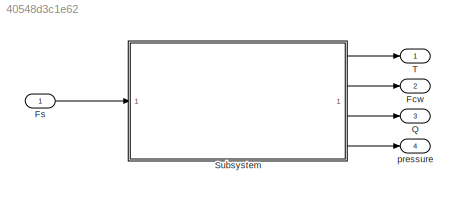
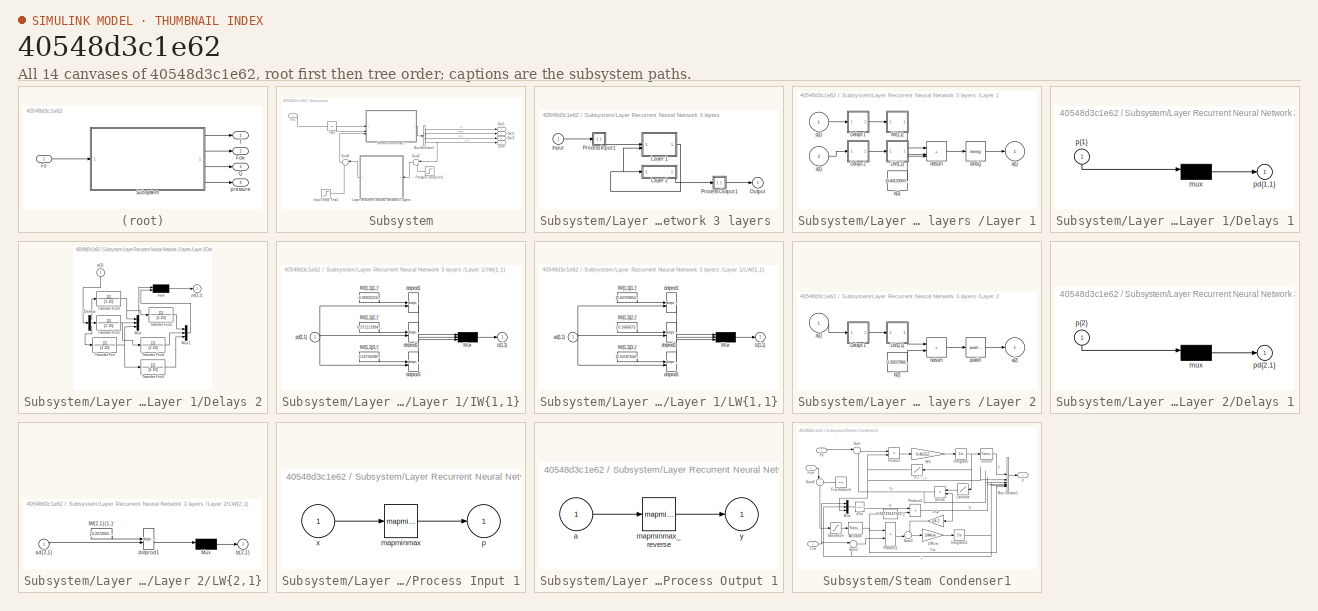
[diagram: thumbnail index - all 14 canvases of the model, root first then tree order]
MODEL slx_40548d3c1e62
KIND model
CONFIG AbsTol = auto
CONFIG EnableMultiTasking = off
CONFIG FixedStep = 0.02
CONFIG MaxStep = .1
CONFIG MinStep = auto
CONFIG RelTol = 1e-3
CONFIG SampleTimeConstraint = Unconstrained
CONFIG SolverName = VariableStepAuto
CONFIG StartTime = 0.0
CONFIG StopTime = 40
WORKSPACE source: mxarray member
WORKSPACE T = [0 0.05 0.1 0.15 0.2 0.25 0.3 0.35 0.4 0.45 0.5 0.55 ... (701 elements, 701x1)]
WORKSPACE U = [3.99594136536 3.99594136536 3.99594136536 3.99594136536 3.99594136536 3.99594136536 3.99594136536 3.99594136536 3.99594136536 3.99594136536 3.99594136536 3.99594136536 ... (701 elements, 701x1)]
BLOCK [Outport] Fcw
  Port = 2
  VectorParamsAs1DForOutWhenUnconnected = off
BLOCK [Inport] Fs
BLOCK [Outport] Q
  Port = 3
  VectorParamsAs1DForOutWhenUnconnected = off
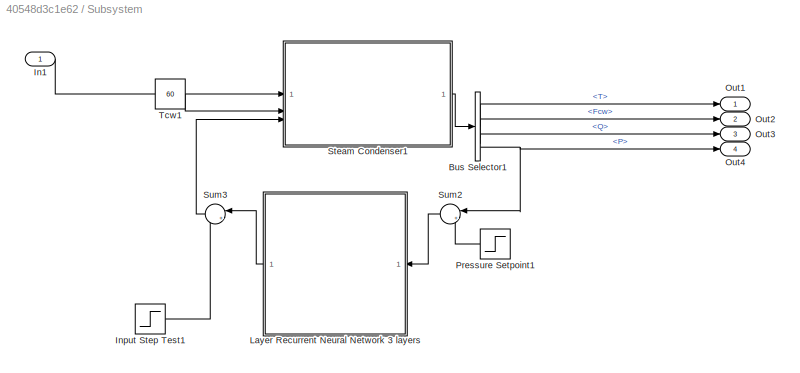
BLOCK [SubSystem] Subsystem
BLOCK [BusSelector] Subsystem/Bus Selector1
  OutputSignals = T,Fcw,Q,P
BLOCK [Inport] Subsystem/In1
BLOCK [Step] Subsystem/Input Step Test1
  After = 0
  SampleTime = 0
  Time = 10
BLOCK [SubSystem] Subsystem/Layer Recurrent Neural Network 3 layers 
BLOCK [Inport] Subsystem/Layer Recurrent Neural Network 3 layers /Input
  PortDimensions = 1
BLOCK [SubSystem] Subsystem/Layer Recurrent Neural Network 3 layers /Layer 1
BLOCK [SubSystem] Subsystem/Layer Recurrent Neural Network 3 layers /Layer 1/Delays 1
BLOCK [Mux] Subsystem/Layer Recurrent Neural Network 3 layers /Layer 1/Delays 1/mux
  Inputs = 1
BLOCK [Outport] Subsystem/Layer Recurrent Neural Network 3 layers /Layer 1/Delays 1/pd{1,1}
  VectorParamsAs1DForOutWhenUnconnected = off
BLOCK [Inport] Subsystem/Layer Recurrent Neural Network 3 layers /Layer 1/Delays 1/p{1}
  NameLocation = left
  PortDimensions = 1
BLOCK [SubSystem] Subsystem/Layer Recurrent Neural Network 3 layers /Layer 1/Delays 2
BLOCK [Demux] Subsystem/Layer Recurrent Neural Network 3 layers /Layer 1/Delays 2/Demux
  Outputs = 3
BLOCK [Mux] Subsystem/Layer Recurrent Neural Network 3 layers /Layer 1/Delays 2/Mux
  DisplayOption = bar
  Inputs = 3
BLOCK [Mux] Subsystem/Layer Recurrent Neural Network 3 layers /Layer 1/Delays 2/Mux1
  DisplayOption = bar
  Inputs = 3
BLOCK [TransferFcn] Subsystem/Layer Recurrent Neural Network 3 layers /Layer 1/Delays 2/Transfer Fcn
  Denominator = [1 10]
BLOCK [TransferFcn] Subsystem/Layer Recurrent Neural Network 3 layers /Layer 1/Delays 2/Transfer Fcn1
  Denominator = [1 10]
BLOCK [TransferFcn] Subsystem/Layer Recurrent Neural Network 3 layers /Layer 1/Delays 2/Transfer Fcn2
  Denominator = [1 10]
BLOCK [TransferFcn] Subsystem/Layer Recurrent Neural Network 3 layers /Layer 1/Delays 2/Transfer Fcn3
  Denominator = [1 10]
BLOCK [TransferFcn] Subsystem/Layer Recurrent Neural Network 3 layers /Layer 1/Delays 2/Transfer Fcn4
  Denominator = [1 10]
BLOCK [TransferFcn] Subsystem/Layer Recurrent Neural Network 3 layers /Layer 1/Delays 2/Transfer Fcn5
  Denominator = [1 10]
BLOCK [Mux] Subsystem/Layer Recurrent Neural Network 3 layers /Layer 1/Delays 2/mux
  Inputs = 2
BLOCK [Outport] Subsystem/Layer Recurrent Neural Network 3 layers /Layer 1/Delays 2/pd{1,1}
  VectorParamsAs1DForOutWhenUnconnected = off
BLOCK [Inport] Subsystem/Layer Recurrent Neural Network 3 layers /Layer 1/Delays 2/p{1}
  NameLocation = left
  PortDimensions = 3
BLOCK [SubSystem] Subsystem/Layer Recurrent Neural Network 3 layers /Layer 1/IW{1,1}
BLOCK [Constant] Subsystem/Layer Recurrent Neural Network 3 layers /Layer 1/IW{1,1}/IW{1,1}(1,:)'
  Value = -0.36932254958803395
BLOCK [Constant] Subsystem/Layer Recurrent Neural Network 3 layers /Layer 1/IW{1,1}/IW{1,1}(2,:)'
  Value = 0.37111199431650393
BLOCK [Constant] Subsystem/Layer Recurrent Neural Network 3 layers /Layer 1/IW{1,1}/IW{1,1}(3,:)'
  Value = -0.52736280584118833
BLOCK [Mux] Subsystem/Layer Recurrent Neural Network 3 layers /Layer 1/IW{1,1}/Mux
  Inputs = 3
BLOCK [Reference] Subsystem/Layer Recurrent Neural Network 3 layers /Layer 1/IW{1,1}/dotprod1  REF=neural/Weight Functions/dotprod
  SourceBlock = neural/Weight Functions/dotprod
  SourceType = DOTPROD
BLOCK [Reference] Subsystem/Layer Recurrent Neural Network 3 layers /Layer 1/IW{1,1}/dotprod2  REF=neural/Weight Functions/dotprod
  SourceBlock = neural/Weight Functions/dotprod
  SourceType = DOTPROD
BLOCK [Reference] Subsystem/Layer Recurrent Neural Network 3 layers /Layer 1/IW{1,1}/dotprod3  REF=neural/Weight Functions/dotprod
  SourceBlock = neural/Weight Functions/dotprod
  SourceType = DOTPROD
BLOCK [Outport] Subsystem/Layer Recurrent Neural Network 3 layers /Layer 1/IW{1,1}/iz{1,1}
  VectorParamsAs1DForOutWhenUnconnected = off
BLOCK [Inport] Subsystem/Layer Recurrent Neural Network 3 layers /Layer 1/IW{1,1}/pd{1,1}
  PortDimensions = 1
BLOCK [SubSystem] Subsystem/Layer Recurrent Neural Network 3 layers /Layer 1/LW{1,1}
BLOCK [Constant] Subsystem/Layer Recurrent Neural Network 3 layers /Layer 1/LW{1,1}/IW{1,1}(1,:)'
  Value = [0.44769854454577174;1.1961840315574388;1.1412233787458486;0.72001623019786209;-0.37547125154051064;-0.61546760904874331]
BLOCK [Constant] Subsystem/Layer Recurrent Neural Network 3 layers /Layer 1/LW{1,1}/IW{1,1}(2,:)'
  Value = [-0.16668730359454359;-0.016432941671533533;-0.22132796342367161;-0.037206224095552992;0.059874671921603305;0.080202592729115826]
BLOCK [Constant] Subsystem/Layer Recurrent Neural Network 3 layers /Layer 1/LW{1,1}/IW{1,1}(3,:)'
  Value = [0.24187644262601646;-0.66963285238228187;-1.0984401489322673;0.029109804692608397;1.3722216833345802;0.66166906669524039]
BLOCK [Mux] Subsystem/Layer Recurrent Neural Network 3 layers /Layer 1/LW{1,1}/Mux
  Inputs = 3
BLOCK [Inport] Subsystem/Layer Recurrent Neural Network 3 layers /Layer 1/LW{1,1}/ad{1,1}
  PortDimensions = 6
BLOCK [Reference] Subsystem/Layer Recurrent Neural Network 3 layers /Layer 1/LW{1,1}/dotprod1  REF=neural/Weight Functions/dotprod
  SourceBlock = neural/Weight Functions/dotprod
  SourceType = DOTPROD
BLOCK [Reference] Subsystem/Layer Recurrent Neural Network 3 layers /Layer 1/LW{1,1}/dotprod2  REF=neural/Weight Functions/dotprod
  SourceBlock = neural/Weight Functions/dotprod
  SourceType = DOTPROD
BLOCK [Reference] Subsystem/Layer Recurrent Neural Network 3 layers /Layer 1/LW{1,1}/dotprod3  REF=neural/Weight Functions/dotprod
  SourceBlock = neural/Weight Functions/dotprod
  SourceType = DOTPROD
BLOCK [Outport] Subsystem/Layer Recurrent Neural Network 3 layers /Layer 1/LW{1,1}/lz{1,1}
  VectorParamsAs1DForOutWhenUnconnected = off
BLOCK [Outport] Subsystem/Layer Recurrent Neural Network 3 layers /Layer 1/a{1}
  InitialOutput = [0;0;0]
  VectorParamsAs1DForOutWhenUnconnected = off
BLOCK [Inport] Subsystem/Layer Recurrent Neural Network 3 layers /Layer 1/a{1} 
  Port = 2
  PortDimensions = 3
BLOCK [Constant] Subsystem/Layer Recurrent Neural Network 3 layers /Layer 1/b{1}
  Value = [0.40129050296348601;-0.12475735064274925;-1.3584541012442735]
BLOCK [Sum] Subsystem/Layer Recurrent Neural Network 3 layers /Layer 1/netsum
  IconShape = rectangular
  InputSameDT = on
  Inputs = 3
  OutDataTypeStr = Inherit: Same as first input
  SaturateOnIntegerOverflow = on
BLOCK [Inport] Subsystem/Layer Recurrent Neural Network 3 layers /Layer 1/p{1}
  PortDimensions = 1
BLOCK [Reference] Subsystem/Layer Recurrent Neural Network 3 layers /Layer 1/tansig  REF=neural/Transfer Functions/tansig
  SourceBlock = neural/Transfer Functions/tansig
  SourceType = TANSIG
BLOCK [SubSystem] Subsystem/Layer Recurrent Neural Network 3 layers /Layer 2
BLOCK [SubSystem] Subsystem/Layer Recurrent Neural Network 3 layers /Layer 2/Delays 1
BLOCK [Mux] Subsystem/Layer Recurrent Neural Network 3 layers /Layer 2/Delays 1/mux
  Inputs = 1
BLOCK [Outport] Subsystem/Layer Recurrent Neural Network 3 layers /Layer 2/Delays 1/pd{2,1}
  VectorParamsAs1DForOutWhenUnconnected = off
BLOCK [Inport] Subsystem/Layer Recurrent Neural Network 3 layers /Layer 2/Delays 1/p{2}
  NameLocation = left
  PortDimensions = 3
BLOCK [SubSystem] Subsystem/Layer Recurrent Neural Network 3 layers /Layer 2/LW{2,1}
BLOCK [Constant] Subsystem/Layer Recurrent Neural Network 3 layers /Layer 2/LW{2,1}/IW{2,1}(1,:)'
  Value = [-0.22749313555095124;2.0804967759906643;-0.56644809886208158]
BLOCK [Mux] Subsystem/Layer Recurrent Neural Network 3 layers /Layer 2/LW{2,1}/Mux
  Inputs = 1
BLOCK [Inport] Subsystem/Layer Recurrent Neural Network 3 layers /Layer 2/LW{2,1}/ad{2,1}
  PortDimensions = 3
BLOCK [Reference] Subsystem/Layer Recurrent Neural Network 3 layers /Layer 2/LW{2,1}/dotprod1  REF=neural/Weight Functions/dotprod
  SourceBlock = neural/Weight Functions/dotprod
  SourceType = DOTPROD
BLOCK [Outport] Subsystem/Layer Recurrent Neural Network 3 layers /Layer 2/LW{2,1}/lz{2,1}
  VectorParamsAs1DForOutWhenUnconnected = off
BLOCK [Inport] Subsystem/Layer Recurrent Neural Network 3 layers /Layer 2/a{1} 
  PortDimensions = 3
BLOCK [Outport] Subsystem/Layer Recurrent Neural Network 3 layers /Layer 2/a{2}
  InitialOutput = 0
  VectorParamsAs1DForOutWhenUnconnected = off
BLOCK [Constant] Subsystem/Layer Recurrent Neural Network 3 layers /Layer 2/b{2}
  Value = -0.33227866684137108
BLOCK [Sum] Subsystem/Layer Recurrent Neural Network 3 layers /Layer 2/netsum
  IconShape = rectangular
  InputSameDT = on
  Inputs = 2
  OutDataTypeStr = Inherit: Same as first input
  SaturateOnIntegerOverflow = on
BLOCK [Reference] Subsystem/Layer Recurrent Neural Network 3 layers /Layer 2/purelin  REF=neural/Transfer Functions/purelin
  SourceBlock = neural/Transfer Functions/purelin
  SourceType = PURELIN
BLOCK [Outport] Subsystem/Layer Recurrent Neural Network 3 layers /Output
  InitialOutput = 0
  VectorParamsAs1DForOutWhenUnconnected = off
BLOCK [SubSystem] Subsystem/Layer Recurrent Neural Network 3 layers /Process Input 1
BLOCK [Reference] Subsystem/Layer Recurrent Neural Network 3 layers /Process Input 1/mapminmax  REF=neural/Processing Functions/mapminmax
  SourceBlock = neural/Processing Functions/mapminmax
  SourceType = MAPMINMAX Preprocess
BLOCK [Outport] Subsystem/Layer Recurrent Neural Network 3 layers /Process Input 1/p
  PortDimensions = 1
  VectorParamsAs1DForOutWhenUnconnected = off
BLOCK [Inport] Subsystem/Layer Recurrent Neural Network 3 layers /Process Input 1/x
  PortDimensions = 1
BLOCK [SubSystem] Subsystem/Layer Recurrent Neural Network 3 layers /Process Output 1
BLOCK [Inport] Subsystem/Layer Recurrent Neural Network 3 layers /Process Output 1/a
  PortDimensions = 1
BLOCK [Reference] Subsystem/Layer Recurrent Neural Network 3 layers /Process Output 1/mapminmax_reverse  REF=neural/Processing Functions/mapminmax_reverse
  SourceBlock = neural/Processing Functions/mapminmax_reverse
  SourceType = MAPMINMAX Reverse Process
BLOCK [Outport] Subsystem/Layer Recurrent Neural Network 3 layers /Process Output 1/y
  PortDimensions = 1
  VectorParamsAs1DForOutWhenUnconnected = off
BLOCK [Outport] Subsystem/Out1
  VectorParamsAs1DForOutWhenUnconnected = off
BLOCK [Outport] Subsystem/Out2
  Port = 2
  VectorParamsAs1DForOutWhenUnconnected = off
BLOCK [Outport] Subsystem/Out3
  Port = 3
  VectorParamsAs1DForOutWhenUnconnected = off
BLOCK [Outport] Subsystem/Out4
  Port = 4
  VectorParamsAs1DForOutWhenUnconnected = off
BLOCK [Step] Subsystem/Pressure Setpoint1
  After = 87
  Before = 90
  SampleTime = 0
  Time = 2
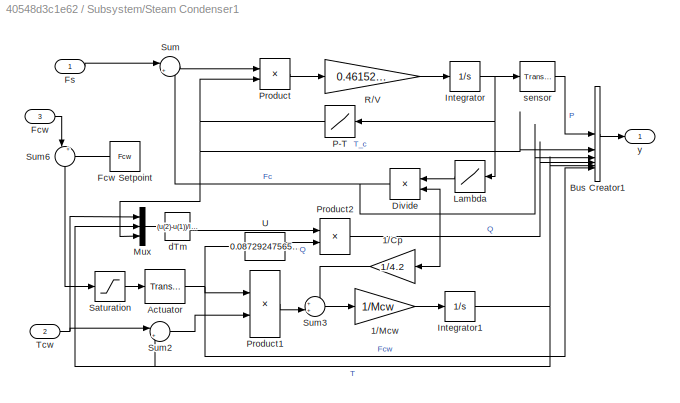
BLOCK [SubSystem] Subsystem/Steam Condenser1
BLOCK [Gain] Subsystem/Steam Condenser1/1//Cp
  Gain = 1/4.2
  OutDataTypeStr = Inherit: Same as input
  ParamDataTypeStr = Inherit: Same as input
BLOCK [Gain] Subsystem/Steam Condenser1/1//Mcw
  Gain = 1/Mcw
  OutDataTypeStr = Inherit: Same as input
  ParamDataTypeStr = Inherit: Same as input
BLOCK [Reference] Subsystem/Steam Condenser1/Actuator  REF=simulink_extras/Additional
Linear/Transfer Fcn
(with initial outputs)
  SourceBlock = simulink_extras/Additional\nLinear/Transfer Fcn\n(with initial outputs)
  SourceType = Transfer Function with Initial Outputs
BLOCK [BusCreator] Subsystem/Steam Condenser1/Bus Creator1
  DisplayOption = bar
  InheritFromInputs = on
  Inputs = 6
BLOCK [Product] Subsystem/Steam Condenser1/Divide
  InputSameDT = on
  Inputs = /*
  OutDataTypeStr = Inherit: Same as first input
  RndMeth = Zero
BLOCK [Inport] Subsystem/Steam Condenser1/Fcw
  Port = 3
BLOCK [Constant] Subsystem/Steam Condenser1/Fcw Setpoint
  Value = Fcw
BLOCK [Inport] Subsystem/Steam Condenser1/Fs
BLOCK [Integrator] Subsystem/Steam Condenser1/Integrator
  InitialCondition = P
BLOCK [Integrator] Subsystem/Steam Condenser1/Integrator1
  InitialCondition = T
BLOCK [Lookup] Subsystem/Steam Condenser1/Lambda
  InputValues = [50 60 70 80 90 100 110]
  Table = [2305.42 2293.64 2283.30 2274.05 2265.65 2257.92 2250.76]
BLOCK [Mux] Subsystem/Steam Condenser1/Mux
  DisplayOption = bar
  Inputs = 3
BLOCK [Lookup] Subsystem/Steam Condenser1/P-T
  InputValues = [50 60 70 80 90 100 110]
  Table = [81.3167 85.9258 89.9315 93.4854 96.6870 99.6059 102.2923]
BLOCK [Product] Subsystem/Steam Condenser1/Product
  InputSameDT = on
  OutDataTypeStr = Inherit: Same as first input
  RndMeth = Zero
BLOCK [Product] Subsystem/Steam Condenser1/Product1
  InputSameDT = on
  OutDataTypeStr = Inherit: Same as first input
  RndMeth = Zero
BLOCK [Product] Subsystem/Steam Condenser1/Product2
  InputSameDT = on
  Inputs = */
  OutDataTypeStr = Inherit: Same as first input
  RndMeth = Zero
BLOCK [Gain] Subsystem/Steam Condenser1/R//V
  Gain = 0.461526/V
  OutDataTypeStr = Inherit: Same as input
  ParamDataTypeStr = Inherit: Same as input
BLOCK [Saturate] Subsystem/Steam Condenser1/Saturation
  LowerLimit = 0
  UpperLimit = 200
BLOCK [Sum] Subsystem/Steam Condenser1/Sum
  InputSameDT = on
  Inputs = |+-
  OutDataTypeStr = Inherit: Same as first input
BLOCK [Sum] Subsystem/Steam Condenser1/Sum2
  InputSameDT = on
  Inputs = |+-
  OutDataTypeStr = Inherit: Same as first input
BLOCK [Sum] Subsystem/Steam Condenser1/Sum3
  InputSameDT = on
  Inputs = ++|
  OutDataTypeStr = Inherit: Same as first input
BLOCK [Sum] Subsystem/Steam Condenser1/Sum6
  InputSameDT = on
  Inputs = |++
  NameLocation = left
  OutDataTypeStr = Inherit: Same as first input
BLOCK [Inport] Subsystem/Steam Condenser1/Tcw
  Port = 2
BLOCK [Fcn] Subsystem/Steam Condenser1/U
  Expr = 0.0872924756541668/u^0.8+0.00073786772008033
BLOCK [Fcn] Subsystem/Steam Condenser1/dTm
  Expr = (u(2)-u(1))/log((u(3)-u(1))/(u(3)-u(2)))
BLOCK [Reference] Subsystem/Steam Condenser1/sensor  REF=simulink_extras/Additional
Linear/Transfer Fcn
(with initial outputs)
  SourceBlock = simulink_extras/Additional\nLinear/Transfer Fcn\n(with initial outputs)
  SourceType = Transfer Function with Initial Outputs
BLOCK [Outport] Subsystem/Steam Condenser1/y
  VectorParamsAs1DForOutWhenUnconnected = off
BLOCK [Sum] Subsystem/Sum2
  InputSameDT = on
  Inputs = |+-
  OutDataTypeStr = Inherit: Same as first input
BLOCK [Sum] Subsystem/Sum3
  InputSameDT = on
  Inputs = |++
  OutDataTypeStr = Inherit: Same as first input
BLOCK [Constant] Subsystem/Tcw1
  Value = 60
  VectorParams1D = off
BLOCK [Outport] T
  VectorParamsAs1DForOutWhenUnconnected = off
BLOCK [Outport] pressure
  Port = 4
  VectorParamsAs1DForOutWhenUnconnected = off
LINE Fs:1 -> Subsystem:1
LINE Subsystem/Bus Selector1:1 -> Subsystem/Out1:1
LINE Subsystem/Bus Selector1:2 -> Subsystem/Out2:1
LINE Subsystem/Bus Selector1:3 -> Subsystem/Out3:1
NET Subsystem/Bus Selector1:4 -> Subsystem/Out4:1, Subsystem/Sum2:1
LINE Subsystem/In1:1 -> Subsystem/Steam Condenser1:1
LINE Subsystem/Input Step Test1:1 -> Subsystem/Sum3:2
LINE Subsystem/Layer Recurrent Neural Network 3 layers /Input:1 -> Subsystem/Layer Recurrent Neural Network 3 layers /Process Input 1:1
LINE Subsystem/Layer Recurrent Neural Network 3 layers /Layer 1/Delays 1/mux:1 -> Subsystem/Layer Recurrent Neural Network 3 layers /Layer 1/Delays 1/pd{1,1}:1
LINE Subsystem/Layer Recurrent Neural Network 3 layers /Layer 1/Delays 1/p{1}:1 -> Subsystem/Layer Recurrent Neural Network 3 layers /Layer 1/Delays 1/mux:1
LINE Subsystem/Layer Recurrent Neural Network 3 layers /Layer 1/Delays 1:1 -> Subsystem/Layer Recurrent Neural Network 3 layers /Layer 1/IW{1,1}:1
LINE Subsystem/Layer Recurrent Neural Network 3 layers /Layer 1/Delays 2/Demux:1 -> Subsystem/Layer Recurrent Neural Network 3 layers /Layer 1/Delays 2/Transfer Fcn2:1
LINE Subsystem/Layer Recurrent Neural Network 3 layers /Layer 1/Delays 2/Demux:2 -> Subsystem/Layer Recurrent Neural Network 3 layers /Layer 1/Delays 2/Transfer Fcn1:1
LINE Subsystem/Layer Recurrent Neural Network 3 layers /Layer 1/Delays 2/Demux:3 -> Subsystem/Layer Recurrent Neural Network 3 layers /Layer 1/Delays 2/Transfer Fcn:1
LINE Subsystem/Layer Recurrent Neural Network 3 layers /Layer 1/Delays 2/Mux1:1 -> Subsystem/Layer Recurrent Neural Network 3 layers /Layer 1/Delays 2/mux:2
LINE Subsystem/Layer Recurrent Neural Network 3 layers /Layer 1/Delays 2/Mux:1 -> Subsystem/Layer Recurrent Neural Network 3 layers /Layer 1/Delays 2/mux:1
NET Subsystem/Layer Recurrent Neural Network 3 layers /Layer 1/Delays 2/Transfer Fcn1:1 -> Subsystem/Layer Recurrent Neural Network 3 layers /Layer 1/Delays 2/Mux:2, Subsystem/Layer Recurrent Neural Network 3 layers /Layer 1/Delays 2/Transfer Fcn4:1
NET Subsystem/Layer Recurrent Neural Network 3 layers /Layer 1/Delays 2/Transfer Fcn2:1 -> Subsystem/Layer Recurrent Neural Network 3 layers /Layer 1/Delays 2/Mux:1, Subsystem/Layer Recurrent Neural Network 3 layers /Layer 1/Delays 2/Transfer Fcn5:1
LINE Subsystem/Layer Recurrent Neural Network 3 layers /Layer 1/Delays 2/Transfer Fcn3:1 -> Subsystem/Layer Recurrent Neural Network 3 layers /Layer 1/Delays 2/Mux1:3
LINE Subsystem/Layer Recurrent Neural Network 3 layers /Layer 1/Delays 2/Transfer Fcn4:1 -> Subsystem/Layer Recurrent Neural Network 3 layers /Layer 1/Delays 2/Mux1:2
LINE Subsystem/Layer Recurrent Neural Network 3 layers /Layer 1/Delays 2/Transfer Fcn5:1 -> Subsystem/Layer Recurrent Neural Network 3 layers /Layer 1/Delays 2/Mux1:1
NET Subsystem/Layer Recurrent Neural Network 3 layers /Layer 1/Delays 2/Transfer Fcn:1 -> Subsystem/Layer Recurrent Neural Network 3 layers /Layer 1/Delays 2/Mux:3, Subsystem/Layer Recurrent Neural Network 3 layers /Layer 1/Delays 2/Transfer Fcn3:1
LINE Subsystem/Layer Recurrent Neural Network 3 layers /Layer 1/Delays 2/mux:1 -> Subsystem/Layer Recurrent Neural Network 3 layers /Layer 1/Delays 2/pd{1,1}:1
LINE Subsystem/Layer Recurrent Neural Network 3 layers /Layer 1/Delays 2/p{1}:1 -> Subsystem/Layer Recurrent Neural Network 3 layers /Layer 1/Delays 2/Demux:1
LINE Subsystem/Layer Recurrent Neural Network 3 layers /Layer 1/Delays 2:1 -> Subsystem/Layer Recurrent Neural Network 3 layers /Layer 1/LW{1,1}:1
LINE Subsystem/Layer Recurrent Neural Network 3 layers /Layer 1/IW{1,1}/IW{1,1}(1,:)':1 -> Subsystem/Layer Recurrent Neural Network 3 layers /Layer 1/IW{1,1}/dotprod1:1
LINE Subsystem/Layer Recurrent Neural Network 3 layers /Layer 1/IW{1,1}/IW{1,1}(2,:)':1 -> Subsystem/Layer Recurrent Neural Network 3 layers /Layer 1/IW{1,1}/dotprod2:1
LINE Subsystem/Layer Recurrent Neural Network 3 layers /Layer 1/IW{1,1}/IW{1,1}(3,:)':1 -> Subsystem/Layer Recurrent Neural Network 3 layers /Layer 1/IW{1,1}/dotprod3:1
LINE Subsystem/Layer Recurrent Neural Network 3 layers /Layer 1/IW{1,1}/Mux:1 -> Subsystem/Layer Recurrent Neural Network 3 layers /Layer 1/IW{1,1}/iz{1,1}:1
LINE Subsystem/Layer Recurrent Neural Network 3 layers /Layer 1/IW{1,1}/dotprod1:1 -> Subsystem/Layer Recurrent Neural Network 3 layers /Layer 1/IW{1,1}/Mux:1
LINE Subsystem/Layer Recurrent Neural Network 3 layers /Layer 1/IW{1,1}/dotprod2:1 -> Subsystem/Layer Recurrent Neural Network 3 layers /Layer 1/IW{1,1}/Mux:2
LINE Subsystem/Layer Recurrent Neural Network 3 layers /Layer 1/IW{1,1}/dotprod3:1 -> Subsystem/Layer Recurrent Neural Network 3 layers /Layer 1/IW{1,1}/Mux:3
NET Subsystem/Layer Recurrent Neural Network 3 layers /Layer 1/IW{1,1}/pd{1,1}:1 -> Subsystem/Layer Recurrent Neural Network 3 layers /Layer 1/IW{1,1}/dotprod1:2, Subsystem/Layer Recurrent Neural Network 3 layers /Layer 1/IW{1,1}/dotprod2:2, Subsystem/Layer Recurrent Neural Network 3 layers /Layer 1/IW{1,1}/dotprod3:2
LINE Subsystem/Layer Recurrent Neural Network 3 layers /Layer 1/IW{1,1}:1 -> Subsystem/Layer Recurrent Neural Network 3 layers /Layer 1/netsum:1
LINE Subsystem/Layer Recurrent Neural Network 3 layers /Layer 1/LW{1,1}/IW{1,1}(1,:)':1 -> Subsystem/Layer Recurrent Neural Network 3 layers /Layer 1/LW{1,1}/dotprod1:1
LINE Subsystem/Layer Recurrent Neural Network 3 layers /Layer 1/LW{1,1}/IW{1,1}(2,:)':1 -> Subsystem/Layer Recurrent Neural Network 3 layers /Layer 1/LW{1,1}/dotprod2:1
LINE Subsystem/Layer Recurrent Neural Network 3 layers /Layer 1/LW{1,1}/IW{1,1}(3,:)':1 -> Subsystem/Layer Recurrent Neural Network 3 layers /Layer 1/LW{1,1}/dotprod3:1
LINE Subsystem/Layer Recurrent Neural Network 3 layers /Layer 1/LW{1,1}/Mux:1 -> Subsystem/Layer Recurrent Neural Network 3 layers /Layer 1/LW{1,1}/lz{1,1}:1
NET Subsystem/Layer Recurrent Neural Network 3 layers /Layer 1/LW{1,1}/ad{1,1}:1 -> Subsystem/Layer Recurrent Neural Network 3 layers /Layer 1/LW{1,1}/dotprod1:2, Subsystem/Layer Recurrent Neural Network 3 layers /Layer 1/LW{1,1}/dotprod2:2, Subsystem/Layer Recurrent Neural Network 3 layers /Layer 1/LW{1,1}/dotprod3:2
LINE Subsystem/Layer Recurrent Neural Network 3 layers /Layer 1/LW{1,1}/dotprod1:1 -> Subsystem/Layer Recurrent Neural Network 3 layers /Layer 1/LW{1,1}/Mux:1
LINE Subsystem/Layer Recurrent Neural Network 3 layers /Layer 1/LW{1,1}/dotprod2:1 -> Subsystem/Layer Recurrent Neural Network 3 layers /Layer 1/LW{1,1}/Mux:2
LINE Subsystem/Layer Recurrent Neural Network 3 layers /Layer 1/LW{1,1}/dotprod3:1 -> Subsystem/Layer Recurrent Neural Network 3 layers /Layer 1/LW{1,1}/Mux:3
LINE Subsystem/Layer Recurrent Neural Network 3 layers /Layer 1/LW{1,1}:1 -> Subsystem/Layer Recurrent Neural Network 3 layers /Layer 1/netsum:2
LINE Subsystem/Layer Recurrent Neural Network 3 layers /Layer 1/a{1} :1 -> Subsystem/Layer Recurrent Neural Network 3 layers /Layer 1/Delays 2:1
LINE Subsystem/Layer Recurrent Neural Network 3 layers /Layer 1/b{1}:1 -> Subsystem/Layer Recurrent Neural Network 3 layers /Layer 1/netsum:3
LINE Subsystem/Layer Recurrent Neural Network 3 layers /Layer 1/netsum:1 -> Subsystem/Layer Recurrent Neural Network 3 layers /Layer 1/tansig:1
LINE Subsystem/Layer Recurrent Neural Network 3 layers /Layer 1/p{1}:1 -> Subsystem/Layer Recurrent Neural Network 3 layers /Layer 1/Delays 1:1
LINE Subsystem/Layer Recurrent Neural Network 3 layers /Layer 1/tansig:1 -> Subsystem/Layer Recurrent Neural Network 3 layers /Layer 1/a{1}:1
NET Subsystem/Layer Recurrent Neural Network 3 layers /Layer 1:1 -> Subsystem/Layer Recurrent Neural Network 3 layers /Layer 1:2, Subsystem/Layer Recurrent Neural Network 3 layers /Layer 2:1
LINE Subsystem/Layer Recurrent Neural Network 3 layers /Layer 2/Delays 1/mux:1 -> Subsystem/Layer Recurrent Neural Network 3 layers /Layer 2/Delays 1/pd{2,1}:1
LINE Subsystem/Layer Recurrent Neural Network 3 layers /Layer 2/Delays 1/p{2}:1 -> Subsystem/Layer Recurrent Neural Network 3 layers /Layer 2/Delays 1/mux:1
LINE Subsystem/Layer Recurrent Neural Network 3 layers /Layer 2/Delays 1:1 -> Subsystem/Layer Recurrent Neural Network 3 layers /Layer 2/LW{2,1}:1
LINE Subsystem/Layer Recurrent Neural Network 3 layers /Layer 2/LW{2,1}/IW{2,1}(1,:)':1 -> Subsystem/Layer Recurrent Neural Network 3 layers /Layer 2/LW{2,1}/dotprod1:1
LINE Subsystem/Layer Recurrent Neural Network 3 layers /Layer 2/LW{2,1}/Mux:1 -> Subsystem/Layer Recurrent Neural Network 3 layers /Layer 2/LW{2,1}/lz{2,1}:1
LINE Subsystem/Layer Recurrent Neural Network 3 layers /Layer 2/LW{2,1}/ad{2,1}:1 -> Subsystem/Layer Recurrent Neural Network 3 layers /Layer 2/LW{2,1}/dotprod1:2
LINE Subsystem/Layer Recurrent Neural Network 3 layers /Layer 2/LW{2,1}/dotprod1:1 -> Subsystem/Layer Recurrent Neural Network 3 layers /Layer 2/LW{2,1}/Mux:1
LINE Subsystem/Layer Recurrent Neural Network 3 layers /Layer 2/LW{2,1}:1 -> Subsystem/Layer Recurrent Neural Network 3 layers /Layer 2/netsum:1
LINE Subsystem/Layer Recurrent Neural Network 3 layers /Layer 2/a{1} :1 -> Subsystem/Layer Recurrent Neural Network 3 layers /Layer 2/Delays 1:1
LINE Subsystem/Layer Recurrent Neural Network 3 layers /Layer 2/b{2}:1 -> Subsystem/Layer Recurrent Neural Network 3 layers /Layer 2/netsum:2
LINE Subsystem/Layer Recurrent Neural Network 3 layers /Layer 2/netsum:1 -> Subsystem/Layer Recurrent Neural Network 3 layers /Layer 2/purelin:1
LINE Subsystem/Layer Recurrent Neural Network 3 layers /Layer 2/purelin:1 -> Subsystem/Layer Recurrent Neural Network 3 layers /Layer 2/a{2}:1
LINE Subsystem/Layer Recurrent Neural Network 3 layers /Layer 2:1 -> Subsystem/Layer Recurrent Neural Network 3 layers /Process Output 1:1
LINE Subsystem/Layer Recurrent Neural Network 3 layers /Process Input 1/mapminmax:1 -> Subsystem/Layer Recurrent Neural Network 3 layers /Process Input 1/p:1
LINE Subsystem/Layer Recurrent Neural Network 3 layers /Process Input 1/x:1 -> Subsystem/Layer Recurrent Neural Network 3 layers /Process Input 1/mapminmax:1
LINE Subsystem/Layer Recurrent Neural Network 3 layers /Process Input 1:1 -> Subsystem/Layer Recurrent Neural Network 3 layers /Layer 1:1
LINE Subsystem/Layer Recurrent Neural Network 3 layers /Process Output 1/a:1 -> Subsystem/Layer Recurrent Neural Network 3 layers /Process Output 1/mapminmax_reverse:1
LINE Subsystem/Layer Recurrent Neural Network 3 layers /Process Output 1/mapminmax_reverse:1 -> Subsystem/Layer Recurrent Neural Network 3 layers /Process Output 1/y:1
LINE Subsystem/Layer Recurrent Neural Network 3 layers /Process Output 1:1 -> Subsystem/Layer Recurrent Neural Network 3 layers /Output:1
LINE Subsystem/Layer Recurrent Neural Network 3 layers :1 -> Subsystem/Sum3:1
LINE Subsystem/Pressure Setpoint1:1 -> Subsystem/Sum2:2
LINE Subsystem/Steam Condenser1/1//Cp:1 -> Subsystem/Steam Condenser1/Sum3:1
LINE Subsystem/Steam Condenser1/1//Mcw:1 -> Subsystem/Steam Condenser1/Integrator1:1
NET Subsystem/Steam Condenser1/Actuator:1 -> Subsystem/Steam Condenser1/Bus Creator1:6, Subsystem/Steam Condenser1/Product1:1, Subsystem/Steam Condenser1/U:1
LINE Subsystem/Steam Condenser1/Bus Creator1:1 -> Subsystem/Steam Condenser1/y:1
NET Subsystem/Steam Condenser1/Divide:1 -> Subsystem/Steam Condenser1/Bus Creator1:3, Subsystem/Steam Condenser1/Sum:2
LINE Subsystem/Steam Condenser1/Fcw Setpoint:1 -> Subsystem/Steam Condenser1/Sum6:2
LINE Subsystem/Steam Condenser1/Fcw:1 -> Subsystem/Steam Condenser1/Sum6:1
LINE Subsystem/Steam Condenser1/Fs:1 -> Subsystem/Steam Condenser1/Sum:1
NET Subsystem/Steam Condenser1/Integrator1:1 -> Subsystem/Steam Condenser1/Bus Creator1:5, Subsystem/Steam Condenser1/Mux:2, Subsystem/Steam Condenser1/Sum2:2
NET Subsystem/Steam Condenser1/Integrator:1 -> Subsystem/Steam Condenser1/Lambda:1, Subsystem/Steam Condenser1/P-T:1, Subsystem/Steam Condenser1/sensor:1
LINE Subsystem/Steam Condenser1/Lambda:1 -> Subsystem/Steam Condenser1/Divide:1
LINE Subsystem/Steam Condenser1/Mux:1 -> Subsystem/Steam Condenser1/dTm:1
NET Subsystem/Steam Condenser1/P-T:1 -> Subsystem/Steam Condenser1/Bus Creator1:2, Subsystem/Steam Condenser1/Mux:3, Subsystem/Steam Condenser1/Product:2
LINE Subsystem/Steam Condenser1/Product1:1 -> Subsystem/Steam Condenser1/Sum3:2
NET Subsystem/Steam Condenser1/Product2:1 -> Subsystem/Steam Condenser1/1//Cp:1, Subsystem/Steam Condenser1/Bus Creator1:4, Subsystem/Steam Condenser1/Divide:2
LINE Subsystem/Steam Condenser1/Product:1 -> Subsystem/Steam Condenser1/R//V:1
LINE Subsystem/Steam Condenser1/R//V:1 -> Subsystem/Steam Condenser1/Integrator:1
LINE Subsystem/Steam Condenser1/Saturation:1 -> Subsystem/Steam Condenser1/Actuator:1
LINE Subsystem/Steam Condenser1/Sum2:1 -> Subsystem/Steam Condenser1/Product1:2
LINE Subsystem/Steam Condenser1/Sum3:1 -> Subsystem/Steam Condenser1/1//Mcw:1
LINE Subsystem/Steam Condenser1/Sum6:1 -> Subsystem/Steam Condenser1/Saturation:1
LINE Subsystem/Steam Condenser1/Sum:1 -> Subsystem/Steam Condenser1/Product:1
NET Subsystem/Steam Condenser1/Tcw:1 -> Subsystem/Steam Condenser1/Mux:1, Subsystem/Steam Condenser1/Sum2:1
LINE Subsystem/Steam Condenser1/U:1 -> Subsystem/Steam Condenser1/Product2:2
LINE Subsystem/Steam Condenser1/dTm:1 -> Subsystem/Steam Condenser1/Product2:1
LINE Subsystem/Steam Condenser1/sensor:1 -> Subsystem/Steam Condenser1/Bus Creator1:1
LINE Subsystem/Steam Condenser1:1 -> Subsystem/Bus Selector1:1
LINE Subsystem/Sum2:1 -> Subsystem/Layer Recurrent Neural Network 3 layers :1
LINE Subsystem/Sum3:1 -> Subsystem/Steam Condenser1:3
LINE Subsystem/Tcw1:1 -> Subsystem/Steam Condenser1:2
LINE Subsystem:1 -> T:1
LINE Subsystem:2 -> Fcw:1
LINE Subsystem:3 -> Q:1
LINE Subsystem:4 -> pressure:1
note: NET lines group one-source signal fan-out (src -> all destinations, sorted); 1:1 wires keep LINE
